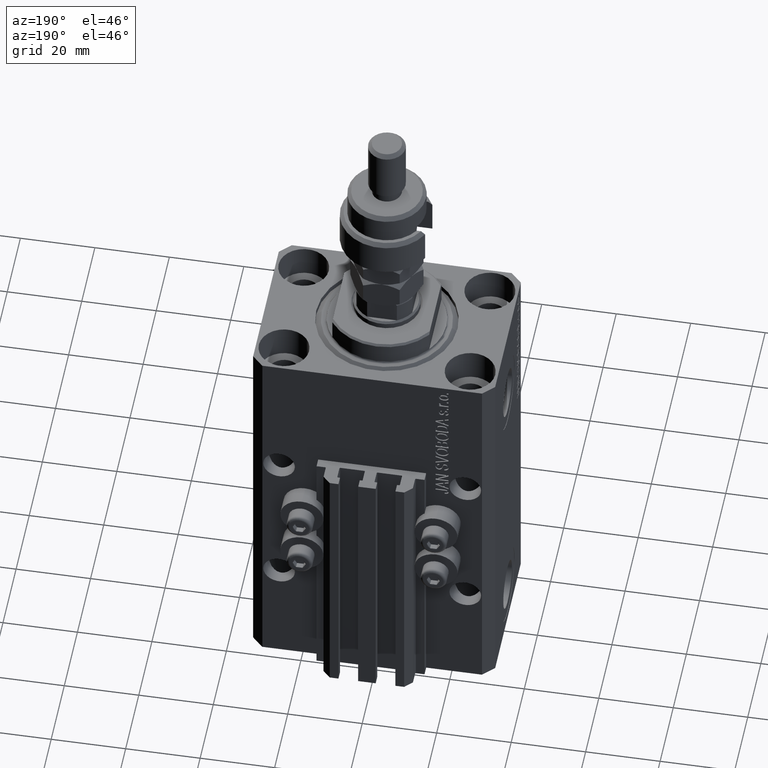
[diagram: clean part render]
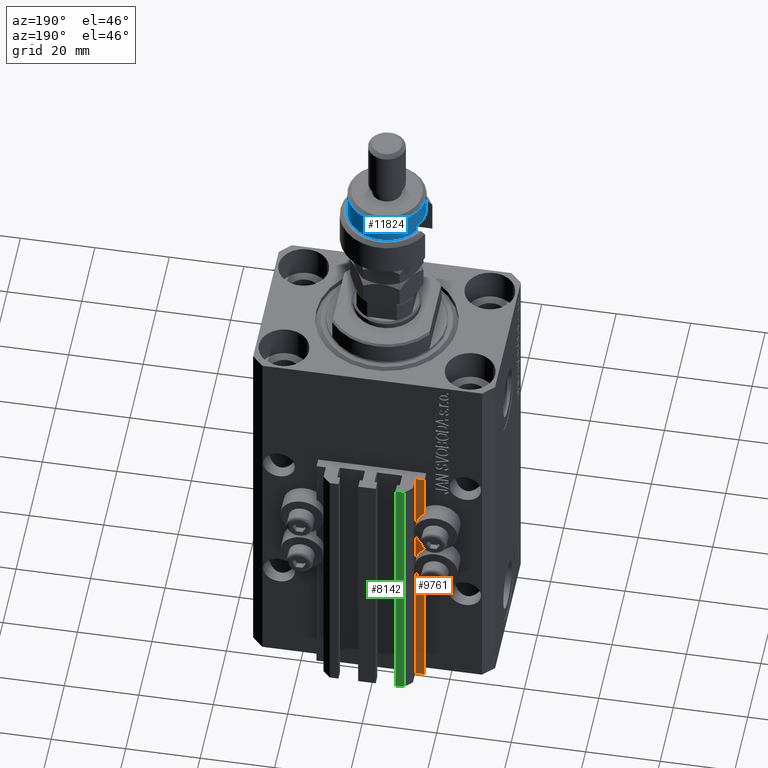
[diagram: same view with three faces highlighted in distinct colors, each labeled with its STEP entity id]
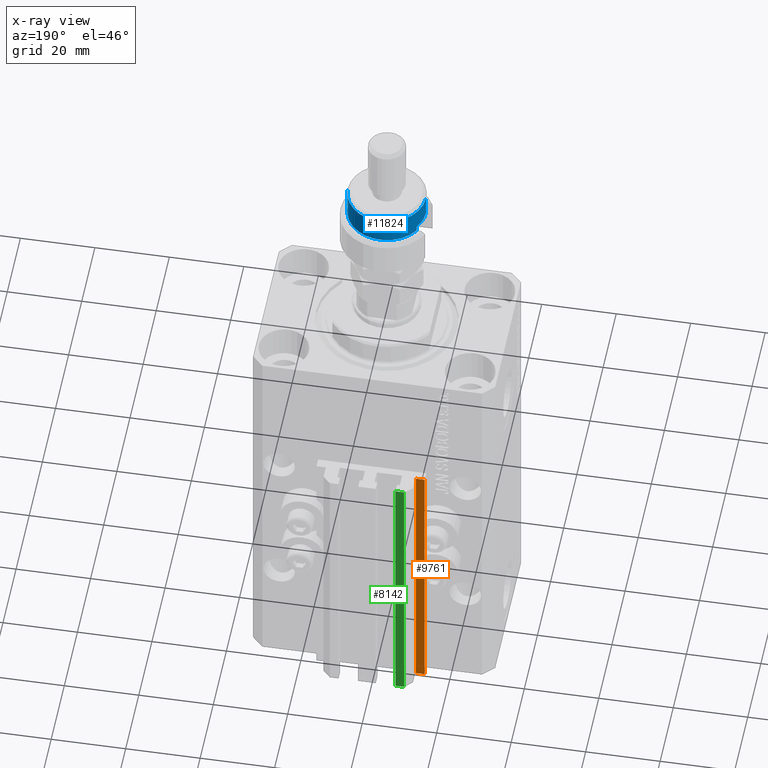
[diagram: x-ray of the same camera — body ghosted, the three highlighted faces saturated]
A machine part, auxiliary view with three faces highlighted in distinct colors.
The next image is the same camera in x-ray (body ghosted, the three faces saturated) — at least one of them is partly hidden behind the body in this view.
Their STEP definitions:

[orange] entity #9761 — the highlighted planar face has unit normal (0, 1, 0).
#516 = VERTEX_POINT ( 'NONE', #21863 ) ;
#738 = EDGE_CURVE ( 'NONE', #4004, #6261, #33981, .T. ) ;
#2072 = DIRECTION ( 'NONE',  ( 0.000000000000000000, 0.000000000000000000, 1.000000000000000000 ) ) ;
#2720 = EDGE_CURVE ( 'NONE', #35498, #4004, #25890, .T. ) ;
#3682 = EDGE_LOOP ( 'NONE', ( #25559, #40356, #4330, #4447 ) ) ;
#4004 = VERTEX_POINT ( 'NONE', #34767 ) ;
#4330 = ORIENTED_EDGE ( 'NONE', *, *, #2720, .T. ) ;
#4447 = ORIENTED_EDGE ( 'NONE', *, *, #738, .T. ) ;
#5909 = DIRECTION ( 'NONE',  ( -1.000000000000000000, 1.508455196501571429E-15, 0.000000000000000000 ) ) ;
#6261 = VERTEX_POINT ( 'NONE', #25509 ) ;
#9761 = ADVANCED_FACE ( 'NONE', ( #28614 ), #13033, .T. ) ;
#10714 = EDGE_CURVE ( 'NONE', #35498, #516, #35205, .T. ) ;
#13033 = PLANE ( 'NONE',  #39391 ) ;
#13391 = EDGE_CURVE ( 'NONE', #516, #6261, #36565, .T. ) ;
#13588 = CARTESIAN_POINT ( 'NONE',  ( -12.20000000000000107, 24.99999999999948841, -33.00000000000000000 ) ) ;
#16614 = VECTOR ( 'NONE', #36231, 1000.000000000000000 ) ;
#21863 = CARTESIAN_POINT ( 'NONE',  ( -12.20000000000000107, 24.99999999999948841, -33.00000000000000000 ) ) ;
#24303 = CARTESIAN_POINT ( 'NONE',  ( -12.20000000000000107, 24.99999999999948841, -107.0000000000000000 ) ) ;
#24519 = VECTOR ( 'NONE', #2072, 1000.000000000000000 ) ;
#25509 = CARTESIAN_POINT ( 'NONE',  ( -14.50000000000000000, 24.99999999999949196, -33.00000000000000000 ) ) ;
#25559 = ORIENTED_EDGE ( 'NONE', *, *, #13391, .F. ) ;
#25890 = LINE ( 'NONE', #49123, #37630 ) ;
#28614 = FACE_OUTER_BOUND ( 'NONE', #3682, .T. ) ;
#33981 = LINE ( 'NONE', #37073, #24519 ) ;
#34767 = CARTESIAN_POINT ( 'NONE',  ( -14.50000000000000000, 24.99999999999949196, -107.0000000000000000 ) ) ;
#35205 = LINE ( 'NONE', #43126, #16614 ) ;
#35498 = VERTEX_POINT ( 'NONE', #24303 ) ;
#36231 = DIRECTION ( 'NONE',  ( 0.000000000000000000, 0.000000000000000000, 1.000000000000000000 ) ) ;
#36565 = LINE ( 'NONE', #13588, #50135 ) ;
#37073 = CARTESIAN_POINT ( 'NONE',  ( -14.50000000000000000, 24.99999999999949196, -107.0000000000000000 ) ) ;
#37275 = DIRECTION ( 'NONE',  ( -1.000000000000000000, 1.508455196501571232E-15, 0.000000000000000000 ) ) ;
#37630 = VECTOR ( 'NONE', #44545, 1000.000000000000000 ) ;
#39391 = AXIS2_PLACEMENT_3D ( 'NONE', #48517, #44179, #37275 ) ;
#40356 = ORIENTED_EDGE ( 'NONE', *, *, #10714, .F. ) ;
#43126 = CARTESIAN_POINT ( 'NONE',  ( -12.20000000000000107, 24.99999999999948841, -107.0000000000000000 ) ) ;
#44179 = DIRECTION ( 'NONE',  ( 1.508455196501571232E-15, 1.000000000000000000, -0.000000000000000000 ) ) ;
#44545 = DIRECTION ( 'NONE',  ( -1.000000000000000000, 1.508455196501571429E-15, 0.000000000000000000 ) ) ;
#48517 = CARTESIAN_POINT ( 'NONE',  ( -12.20000000000000107, 24.99999999999948841, -107.0000000000000000 ) ) ;
#49123 = CARTESIAN_POINT ( 'NONE',  ( -12.20000000000000107, 24.99999999999948841, -107.0000000000000000 ) ) ;
#50135 = VECTOR ( 'NONE', #5909, 1000.000000000000000 ) ;

[blue] entity #11824 — the highlighted cylindrical surface (partial cylindrical patch) has radius 10.5 mm, axis along (-0, -0, -1).
#900 = DIRECTION ( 'NONE',  ( -0.000000000000000000, -0.000000000000000000, -1.000000000000000000 ) ) ;
#3967 = EDGE_CURVE ( 'NONE', #40759, #48888, #45808, .T. ) ;
#5217 = CARTESIAN_POINT ( 'NONE',  ( -10.50000000000000000, 0.000000000000000000, 12.50000000000000000 ) ) ;
#6731 = DIRECTION ( 'NONE',  ( -0.000000000000000000, -0.000000000000000000, -1.000000000000000000 ) ) ;
#6828 = FACE_OUTER_BOUND ( 'NONE', #48678, .T. ) ;
#7799 = EDGE_CURVE ( 'NONE', #9607, #18857, #36160, .T. ) ;
#8061 = CARTESIAN_POINT ( 'NONE',  ( -8.944271909999159220, 5.500000000000000000, 11.00000000000000000 ) ) ;
#9607 = VERTEX_POINT ( 'NONE', #43438 ) ;
#9645 = VECTOR ( 'NONE', #17930, 1000.000000000000000 ) ;
#10097 = VERTEX_POINT ( 'NONE', #28811 ) ;
#10598 = ORIENTED_EDGE ( 'NONE', *, *, #44518, .F. ) ;
#10913 = CYLINDRICAL_SURFACE ( 'NONE', #15849, 10.50000000000000000 ) ;
#11824 = ADVANCED_FACE ( 'NONE', ( #6828 ), #10913, .T. ) ;
#12444 = ORIENTED_EDGE ( 'NONE', *, *, #36785, .T. ) ;
#12499 = CARTESIAN_POINT ( 'NONE',  ( 10.50000000000000000, 1.285879139104720831E-15, 17.99999999999999645 ) ) ;
#13102 = CARTESIAN_POINT ( 'NONE',  ( 10.50000000000000000, 1.285879139104720831E-15, 11.00000000000000000 ) ) ;
#13681 = DIRECTION ( 'NONE',  ( -1.000000000000000000, 0.000000000000000000, 0.000000000000000000 ) ) ;
#13802 = AXIS2_PLACEMENT_3D ( 'NONE', #31658, #39320, #50305 ) ;
#14366 = EDGE_CURVE ( 'NONE', #24120, #40759, #14405, .T. ) ;
#14405 = LINE ( 'NONE', #37628, #30596 ) ;
#15849 = AXIS2_PLACEMENT_3D ( 'NONE', #19345, #18834, #45645 ) ;
#16427 = AXIS2_PLACEMENT_3D ( 'NONE', #21336, #29502, #13681 ) ;
#16992 = CARTESIAN_POINT ( 'NONE',  ( -10.50000000000000000, 0.000000000000000000, 19.00000000000000000 ) ) ;
#17930 = DIRECTION ( 'NONE',  ( 0.000000000000000000, 0.000000000000000000, 1.000000000000000000 ) ) ;
#18834 = DIRECTION ( 'NONE',  ( -0.000000000000000000, -0.000000000000000000, -1.000000000000000000 ) ) ;
#18857 = VERTEX_POINT ( 'NONE', #5217 ) ;
#19345 = CARTESIAN_POINT ( 'NONE',  ( 0.000000000000000000, 0.000000000000000000, 19.00000000000000000 ) ) ;
#21336 = CARTESIAN_POINT ( 'NONE',  ( 0.000000000000000000, 0.000000000000000000, 12.50000000000000000 ) ) ;
#23794 = AXIS2_PLACEMENT_3D ( 'NONE', #48319, #25845, #41414 ) ;
#24120 = VERTEX_POINT ( 'NONE', #12499 ) ;
#25845 = DIRECTION ( 'NONE',  ( 0.000000000000000000, 0.000000000000000000, 1.000000000000000000 ) ) ;
#28489 = CIRCLE ( 'NONE', #13802, 10.50000000000000000 ) ;
#28811 = CARTESIAN_POINT ( 'NONE',  ( -8.944271909999159220, 5.500000000000000000, 12.50000000000000000 ) ) ;
#29502 = DIRECTION ( 'NONE',  ( 0.000000000000000000, 0.000000000000000000, -1.000000000000000000 ) ) ;
#30185 = LINE ( 'NONE', #45519, #9645 ) ;
#30596 = VECTOR ( 'NONE', #6731, 1000.000000000000000 ) ;
#30825 = ORIENTED_EDGE ( 'NONE', *, *, #34627, .T. ) ;
#31658 = CARTESIAN_POINT ( 'NONE',  ( 0.000000000000000000, 0.000000000000000000, 17.99999999999999645 ) ) ;
#31677 = ORIENTED_EDGE ( 'NONE', *, *, #14366, .T. ) ;
#31916 = CIRCLE ( 'NONE', #16427, 10.50000000000000000 ) ;
#34627 = EDGE_CURVE ( 'NONE', #48888, #10097, #30185, .T. ) ;
#36160 = LINE ( 'NONE', #16992, #43404 ) ;
#36785 = EDGE_CURVE ( 'NONE', #9607, #24120, #28489, .T. ) ;
#37628 = CARTESIAN_POINT ( 'NONE',  ( 10.50000000000000000, 1.285879139104720831E-15, 19.00000000000000000 ) ) ;
#39320 = DIRECTION ( 'NONE',  ( 0.000000000000000000, 0.000000000000000000, -1.000000000000000000 ) ) ;
#40759 = VERTEX_POINT ( 'NONE', #13102 ) ;
#41414 = DIRECTION ( 'NONE',  ( 1.000000000000000000, 0.000000000000000000, 0.000000000000000000 ) ) ;
#43404 = VECTOR ( 'NONE', #900, 1000.000000000000000 ) ;
#43438 = CARTESIAN_POINT ( 'NONE',  ( -10.50000000000000000, 0.000000000000000000, 17.99999999999999645 ) ) ;
#44518 = EDGE_CURVE ( 'NONE', #18857, #10097, #31916, .T. ) ;
#45519 = CARTESIAN_POINT ( 'NONE',  ( -8.944271909999159220, 5.500000000000000000, 19.00000000000000000 ) ) ;
#45642 = ORIENTED_EDGE ( 'NONE', *, *, #3967, .T. ) ;
#45645 = DIRECTION ( 'NONE',  ( -1.000000000000000000, 0.000000000000000000, 0.000000000000000000 ) ) ;
#45808 = CIRCLE ( 'NONE', #23794, 10.50000000000000000 ) ;
#48319 = CARTESIAN_POINT ( 'NONE',  ( 0.000000000000000000, 0.000000000000000000, 11.00000000000000000 ) ) ;
#48678 = EDGE_LOOP ( 'NONE', ( #12444, #31677, #45642, #30825, #10598, #49747 ) ) ;
#48888 = VERTEX_POINT ( 'NONE', #8061 ) ;
#49747 = ORIENTED_EDGE ( 'NONE', *, *, #7799, .F. ) ;
#50305 = DIRECTION ( 'NONE',  ( 1.000000000000000000, 0.000000000000000000, 0.000000000000000000 ) ) ;

[green] entity #8142 — the highlighted planar face has unit normal (0, 1, 0).
#224 = VECTOR ( 'NONE', #38090, 1000.000000000000000 ) ;
#982 = EDGE_CURVE ( 'NONE', #21386, #14919, #37234, .T. ) ;
#2231 = DIRECTION ( 'NONE',  ( 0.000000000000000000, 0.000000000000000000, 1.000000000000000000 ) ) ;
#4797 = VECTOR ( 'NONE', #28605, 1000.000000000000000 ) ;
#5211 = ORIENTED_EDGE ( 'NONE', *, *, #982, .F. ) ;
#6390 = VERTEX_POINT ( 'NONE', #23689 ) ;
#8142 = ADVANCED_FACE ( 'NONE', ( #17689 ), #41174, .T. ) ;
#8397 = CARTESIAN_POINT ( 'NONE',  ( -10.00000000000000000, 30.49999999999948841, -107.0000000000000000 ) ) ;
#9423 = EDGE_CURVE ( 'NONE', #9980, #6390, #46472, .T. ) ;
#9946 = DIRECTION ( 'NONE',  ( -1.000000000000000000, 1.476360405086644852E-15, 0.000000000000000000 ) ) ;
#9980 = VERTEX_POINT ( 'NONE', #8397 ) ;
#11471 = CARTESIAN_POINT ( 'NONE',  ( -10.00000000000000000, 30.49999999999948841, -107.0000000000000000 ) ) ;
#13780 = CARTESIAN_POINT ( 'NONE',  ( -7.650000000000000355, 30.49999999999948486, -33.00000000000000000 ) ) ;
#14546 = EDGE_CURVE ( 'NONE', #14919, #6390, #48754, .T. ) ;
#14919 = VERTEX_POINT ( 'NONE', #33860 ) ;
#16360 = LINE ( 'NONE', #39594, #4797 ) ;
#17440 = DIRECTION ( 'NONE',  ( 1.476360405086644852E-15, 1.000000000000000000, -0.000000000000000000 ) ) ;
#17689 = FACE_OUTER_BOUND ( 'NONE', #46372, .T. ) ;
#18094 = AXIS2_PLACEMENT_3D ( 'NONE', #25347, #17440, #32757 ) ;
#18796 = VECTOR ( 'NONE', #2231, 1000.000000000000000 ) ;
#20133 = EDGE_CURVE ( 'NONE', #21386, #9980, #16360, .T. ) ;
#21386 = VERTEX_POINT ( 'NONE', #39324 ) ;
#23689 = CARTESIAN_POINT ( 'NONE',  ( -10.00000000000000000, 30.49999999999948841, -33.00000000000000000 ) ) ;
#25347 = CARTESIAN_POINT ( 'NONE',  ( -7.650000000000000355, 30.49999999999948486, -107.0000000000000000 ) ) ;
#28605 = DIRECTION ( 'NONE',  ( -1.000000000000000000, 1.476360405086644852E-15, 0.000000000000000000 ) ) ;
#31164 = ORIENTED_EDGE ( 'NONE', *, *, #20133, .T. ) ;
#32757 = DIRECTION ( 'NONE',  ( -1.000000000000000000, 1.476360405086644852E-15, 0.000000000000000000 ) ) ;
#33860 = CARTESIAN_POINT ( 'NONE',  ( -7.650000000000000355, 30.49999999999948486, -33.00000000000000000 ) ) ;
#35523 = VECTOR ( 'NONE', #9946, 1000.000000000000000 ) ;
#36433 = ORIENTED_EDGE ( 'NONE', *, *, #14546, .F. ) ;
#37234 = LINE ( 'NONE', #41558, #18796 ) ;
#38090 = DIRECTION ( 'NONE',  ( 0.000000000000000000, 0.000000000000000000, 1.000000000000000000 ) ) ;
#39324 = CARTESIAN_POINT ( 'NONE',  ( -7.650000000000000355, 30.49999999999948486, -107.0000000000000000 ) ) ;
#39594 = CARTESIAN_POINT ( 'NONE',  ( -7.650000000000000355, 30.49999999999948486, -107.0000000000000000 ) ) ;
#41174 = PLANE ( 'NONE',  #18094 ) ;
#41558 = CARTESIAN_POINT ( 'NONE',  ( -7.650000000000000355, 30.49999999999948486, -107.0000000000000000 ) ) ;
#46372 = EDGE_LOOP ( 'NONE', ( #36433, #5211, #31164, #50268 ) ) ;
#46472 = LINE ( 'NONE', #11471, #224 ) ;
#48754 = LINE ( 'NONE', #13780, #35523 ) ;
#50268 = ORIENTED_EDGE ( 'NONE', *, *, #9423, .T. ) ;